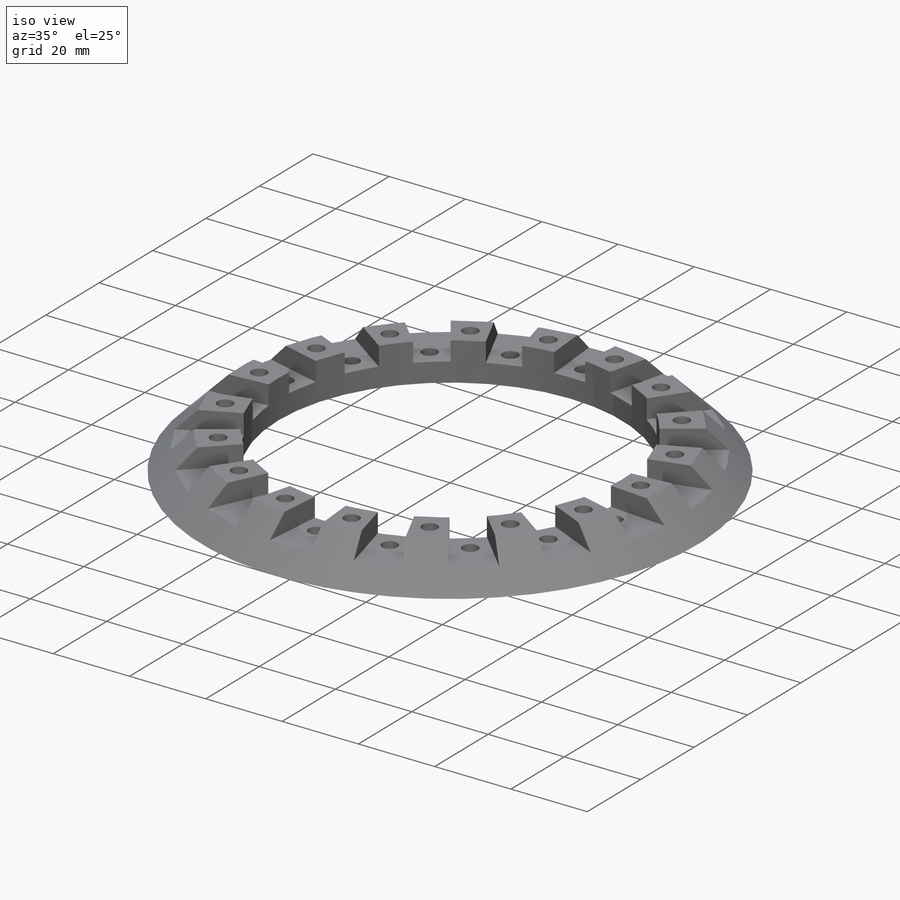
[diagram: iso view]
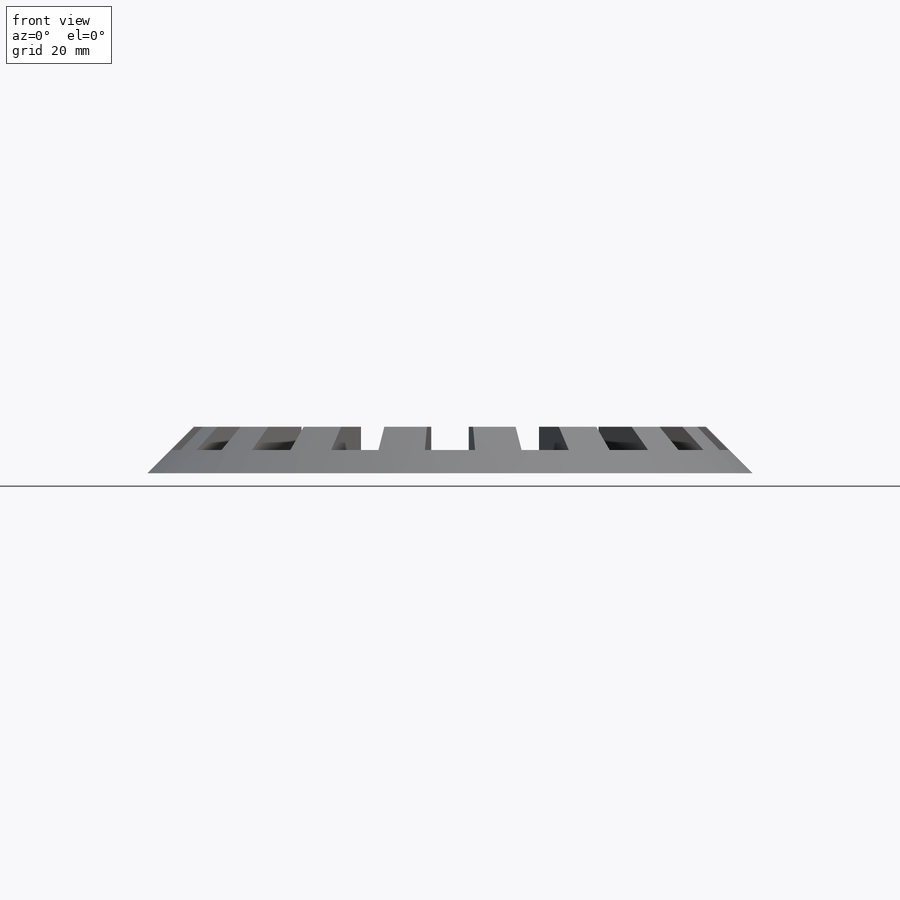
[diagram: front view]
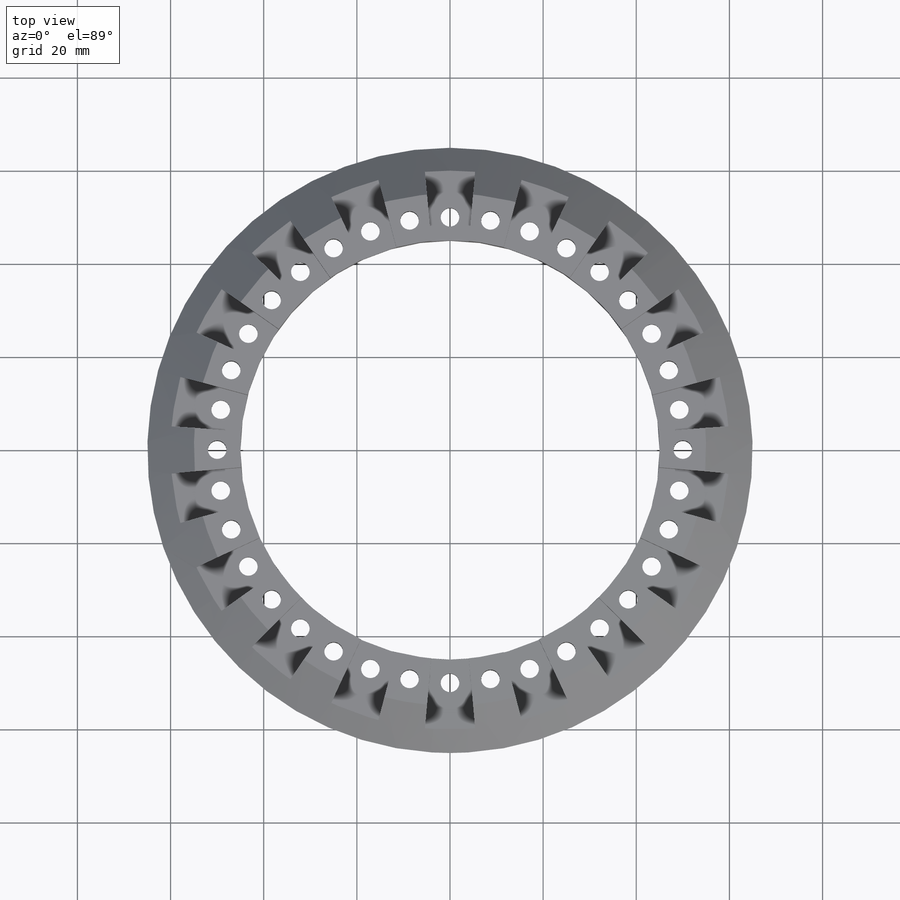
[diagram: top view]
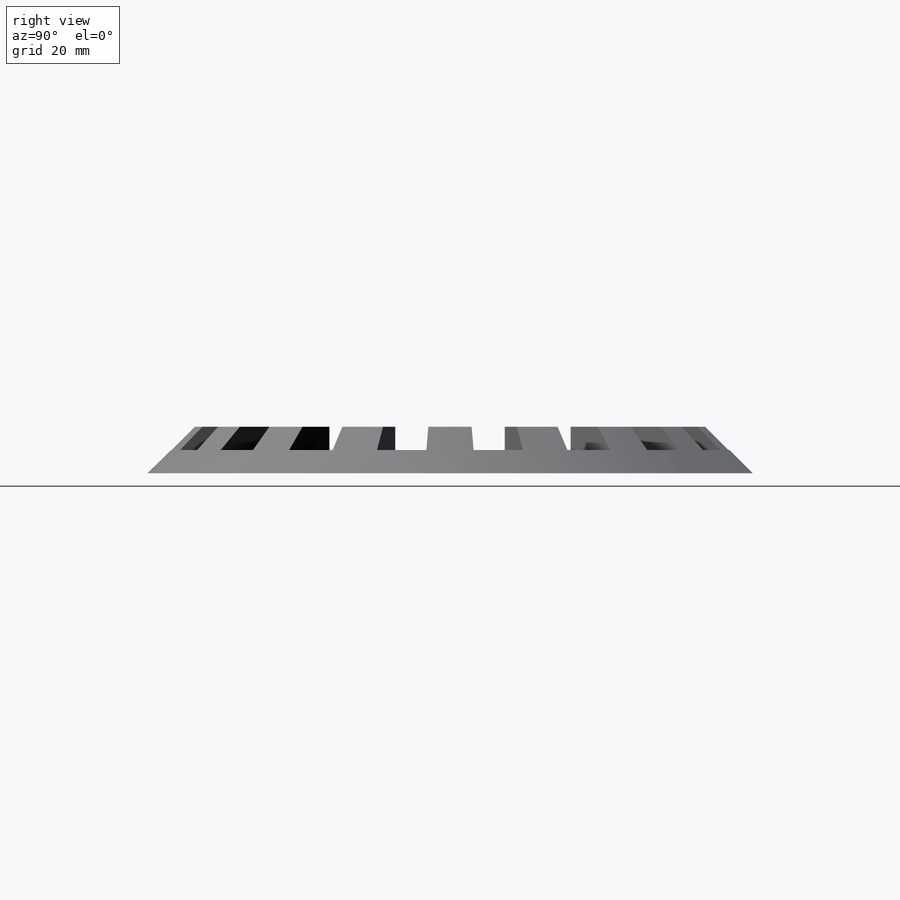
[diagram: right view]
SOLIDWORKS PART (.sldprt)
format: sldprt  version: not decoded by parser v0  size: 312,320 bytes
history: native  units: mm
features: sketch x4, cut_extrude x3, pattern_circular x2, material x1, extrude x1, chamfer x1 (+11 scaffold rows collapsed)
feature tree (23):
  scaffold x11  (default folders/planes/origin — collapsed)
  material  "Material <not specified>"
  sketch  "Sketch1"  dims[D1=130.0mm]
  extrude  "Boss-Extrude1"  Depth=10mm
  chamfer  "Chamfer1"  Distance=10mm Angle=45deg
  sketch  "Sketch5"  dims[D1=90.0mm]
  cut_extrude  "Cut-Extrude4"  [1 undecoded]
  sketch  "Sketch6"  dims[c1.D1=65.0mm c2.D1=10.3deg c3.D1=65.0mm c4.D1=5.15deg]
  cut_extrude  "Cut-Extrude6"  Depth=5mm
  pattern_circular  "CirPattern3"  Count=18 Angle=360deg
  sketch  "Sketch7"  dims[c1.D1=45.0mm c1.D2=4.0mm c2.D1=50.0mm]
  cut_extrude  "Cut-Extrude7"  [1 undecoded]
  pattern_circular  "CirPattern4"  Count=36 Angle=360deg
decode coverage: 9 of 11 modeling features carry decoded parameters
note: 2 parameter values undecoded
note: suppression state not decoded; provenance and decode notes live in map.json
